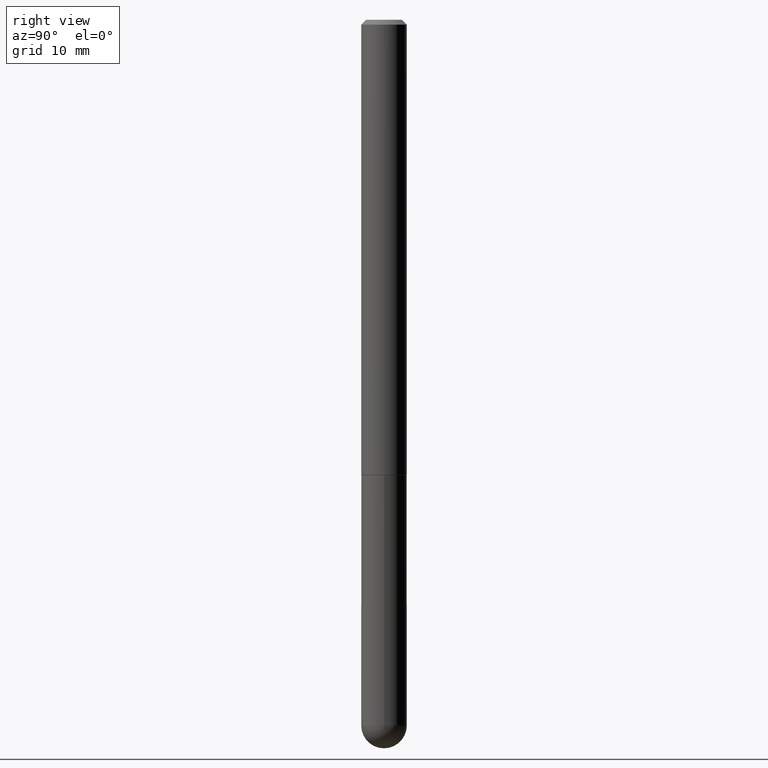
[diagram: clean part render]
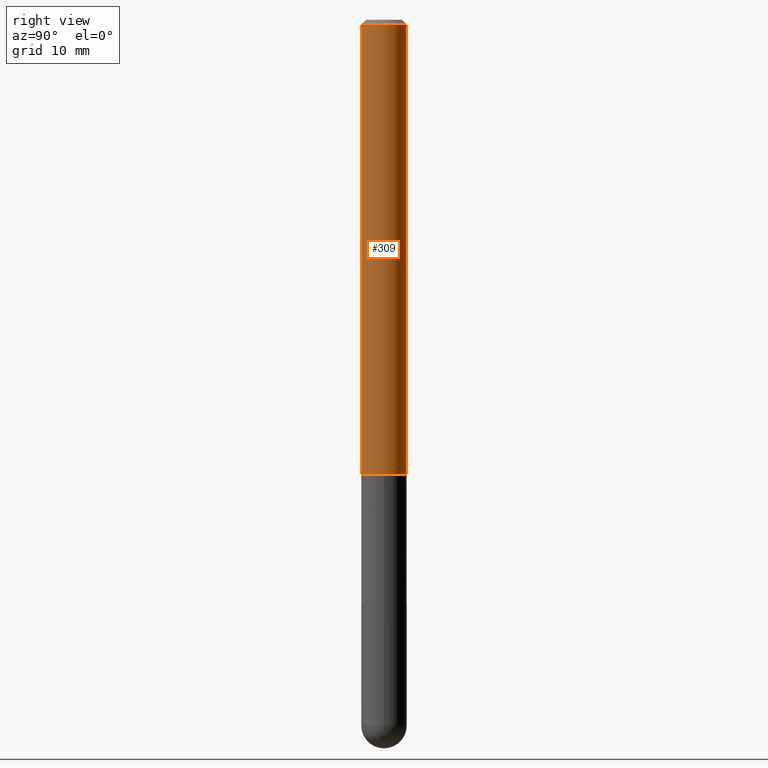
[diagram: same view with one face highlighted and labeled with its STEP entity id]
A machine part, right view. The second image highlights one B-rep face of the part: STEP entity #309.
In plain terms, the highlighted cylindrical surface (edge-blend (fillet) strip) has radius 2.3813 mm, axis along (-0, 0, 1).
Its self-contained STEP definition (entity closure, byte-faithful):
#6 = VECTOR ( 'NONE', #40, 39.37007874015748143 ) ;
#9 = CARTESIAN_POINT ( 'NONE',  ( 6.661338147750947131E-16, 0.09375000000000012490, -3.275384262829794452E-16 ) ) ;
#27 = DIRECTION ( 'NONE',  ( -6.982962677686266711E-15, -1.000000000000000000, 3.493743213685109349E-15 ) ) ;
#28 = CARTESIAN_POINT ( 'NONE',  ( 4.579848637074137935E-29, -6.547274782445895103E-15, -1.874000000000000110 ) ) ;
#38 = CARTESIAN_POINT ( 'NONE',  ( 6.546527510330878985E-16, 0.09374999999999991673, -0.02000000000000040287 ) ) ;
#40 = DIRECTION ( 'NONE',  ( -2.443889347424833227E-29, 3.493743213685109349E-15, 1.000000000000000000 ) ) ;
#55 = CARTESIAN_POINT ( 'NONE',  ( 0.000000000000000000, 0.000000000000000000, 0.000000000000000000 ) ) ;
#83 = DIRECTION ( 'NONE',  ( -2.443889347424833507E-29, 3.493743213685109349E-15, 1.000000000000000000 ) ) ;
#108 = LINE ( 'NONE', #9, #352 ) ;
#131 = CARTESIAN_POINT ( 'NONE',  ( -6.546527510330883916E-16, -0.09375000000000012490, 3.275384262829794452E-16 ) ) ;
#147 = EDGE_CURVE ( 'NONE', #179, #243, #108, .T. ) ;
#155 = ORIENTED_EDGE ( 'NONE', *, *, #175, .F. ) ;
#174 = VERTEX_POINT ( 'NONE', #394 ) ;
#175 = EDGE_CURVE ( 'NONE', #174, #239, #238, .T. ) ;
#179 = VERTEX_POINT ( 'NONE', #233 ) ;
#206 = ORIENTED_EDGE ( 'NONE', *, *, #212, .F. ) ;
#208 = CYLINDRICAL_SURFACE ( 'NONE', #241, 0.09375000000000012490 ) ;
#212 = EDGE_CURVE ( 'NONE', #239, #243, #226, .T. ) ;
#226 = CIRCLE ( 'NONE', #234, 0.09374999999999998612 ) ;
#233 = CARTESIAN_POINT ( 'NONE',  ( 6.661338147751183789E-16, 0.09374999999999372724, -1.874000000000000332 ) ) ;
#234 = AXIS2_PLACEMENT_3D ( 'NONE', #295, #330, #391 ) ;
#238 = LINE ( 'NONE', #131, #6 ) ;
#239 = VERTEX_POINT ( 'NONE', #325 ) ;
#241 = AXIS2_PLACEMENT_3D ( 'NONE', #55, #83, #27 ) ;
#243 = VERTEX_POINT ( 'NONE', #38 ) ;
#273 = AXIS2_PLACEMENT_3D ( 'NONE', #28, #400, #372 ) ;
#295 = CARTESIAN_POINT ( 'NONE',  ( 4.887778694849685267E-31, -6.987486427370243399E-17, -0.02000000000000007327 ) ) ;
#300 = ORIENTED_EDGE ( 'NONE', *, *, #393, .T. ) ;
#302 = DIRECTION ( 'NONE',  ( -2.443889347424833227E-29, 3.493743213685109349E-15, 1.000000000000000000 ) ) ;
#309 = ADVANCED_FACE ( 'NONE', ( #369 ), #208, .T. ) ;
#319 = EDGE_LOOP ( 'NONE', ( #300, #338, #206, #155 ) ) ;
#325 = CARTESIAN_POINT ( 'NONE',  ( -6.431716872910804923E-16, -0.09375000000000005551, -0.01999999999999974368 ) ) ;
#330 = DIRECTION ( 'NONE',  ( -2.443889347424833507E-29, 3.493743213685109349E-15, 1.000000000000000000 ) ) ;
#338 = ORIENTED_EDGE ( 'NONE', *, *, #147, .T. ) ;
#352 = VECTOR ( 'NONE', #302, 39.37007874015748143 ) ;
#369 = FACE_OUTER_BOUND ( 'NONE', #319, .T. ) ;
#372 = DIRECTION ( 'NONE',  ( -6.982962677686265133E-15, -1.000000000000000000, 2.913971193241872483E-15 ) ) ;
#391 = DIRECTION ( 'NONE',  ( -6.982962677686266711E-15, -1.000000000000000000, 3.505871591869138487E-15 ) ) ;
#393 = EDGE_CURVE ( 'NONE', #174, #179, #406, .T. ) ;
#394 = CARTESIAN_POINT ( 'NONE',  ( -6.546527510330433279E-16, -0.09375000000000680012, -1.873999999999999666 ) ) ;
#400 = DIRECTION ( 'NONE',  ( -2.443889347424833507E-29, 3.493743213685109349E-15, 1.000000000000000000 ) ) ;
#406 = CIRCLE ( 'NONE', #273, 0.09375000000000026368 ) ;